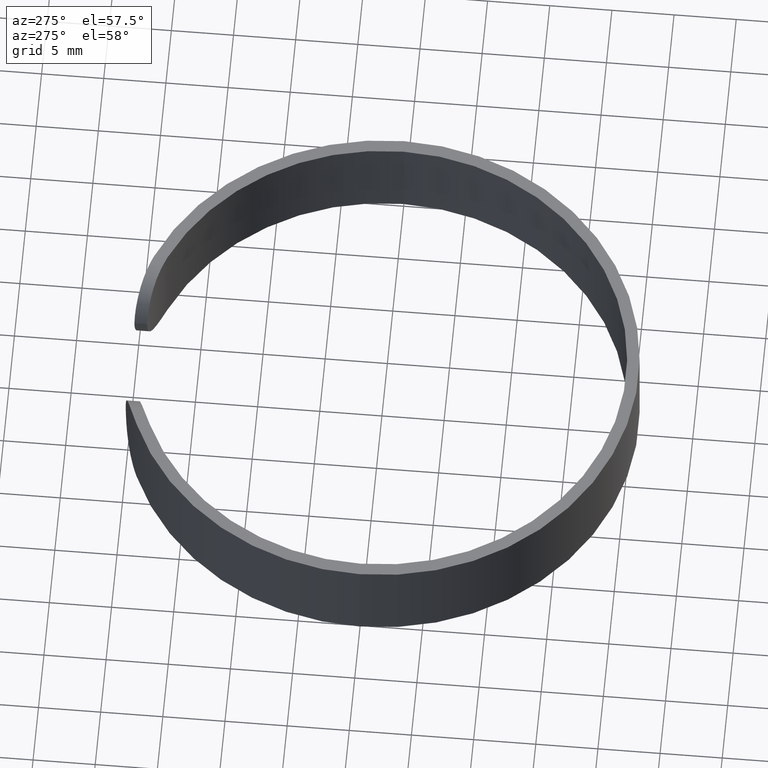
[diagram: clean part render]
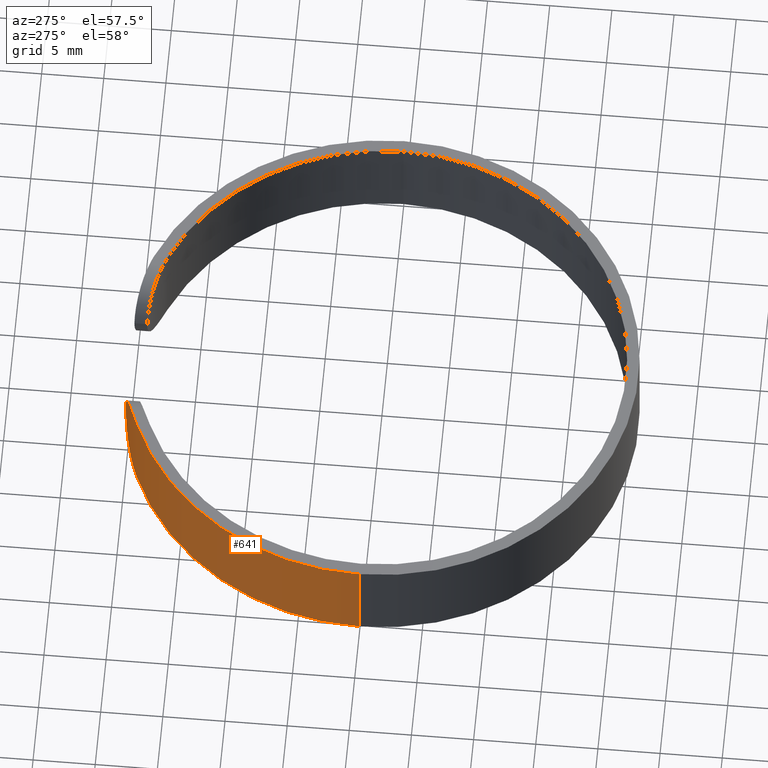
[diagram: same view with one face highlighted and labeled with its STEP entity id]
A machine part, auxiliary view. The second image highlights one B-rep face of the part: STEP entity #641.
In plain terms, the highlighted cylindrical surface (partial cylindrical patch) has radius 20.65 mm, axis along (-0, -0, -1).
Its self-contained STEP definition (entity closure, byte-faithful):
#4 = ORIENTED_EDGE ( 'NONE', *, *, #328, .F. ) ;
#30 = CARTESIAN_POINT ( 'NONE',  ( -5.440013080308325800, 19.92150801506721800, 0.9156393886543285900 ) ) ;
#34 = CARTESIAN_POINT ( 'NONE',  ( -4.591656496433357000, 20.13364190875028800, 5.909877613514676200 ) ) ;
#45 = CARTESIAN_POINT ( 'NONE',  ( -4.001250195373559700, 20.25864005490060300, 3.899999999999970200 ) ) ;
#65 = VECTOR ( 'NONE', #75, 1000.000000000000000 ) ;
#74 = CARTESIAN_POINT ( 'NONE',  ( -20.64999999999999900, 0.0000000000000000000, 7.799999999999999800 ) ) ;
#75 = DIRECTION ( 'NONE',  ( -0.0000000000000000000, -0.0000000000000000000, -1.000000000000000000 ) ) ;
#76 = CARTESIAN_POINT ( 'NONE',  ( 0.0000000000000000000, 0.0000000000000000000, 0.0000000000000000000 ) ) ;
#82 = CARTESIAN_POINT ( 'NONE',  ( -4.895375029125304400, 20.06195776127647100, 6.335683886555385100 ) ) ;
#83 = AXIS2_PLACEMENT_3D ( 'NONE', #350, #249, #347 ) ;
#84 = CARTESIAN_POINT ( 'NONE',  ( -4.041219654612105700, 20.25079472239115200, 4.431405115075309100 ) ) ;
#86 = CARTESIAN_POINT ( 'NONE',  ( -4.001250195373559700, 20.25864005490060300, 3.899999999999970200 ) ) ;
#118 = CARTESIAN_POINT ( 'NONE',  ( -8.000000000000005300, 19.03739740615822400, 7.799999999999999800 ) ) ;
#130 = VERTEX_POINT ( 'NONE', #45 ) ;
#134 = CARTESIAN_POINT ( 'NONE',  ( -4.007911188262438500, 20.25732445330909200, 4.166356440130245500 ) ) ;
#137 = CARTESIAN_POINT ( 'NONE',  ( -7.020837237768803100, 19.42159598297301000, 0.1137489386312720100 ) ) ;
#139 = CARTESIAN_POINT ( 'NONE',  ( -7.509196294477861000, 19.23804868109222000, 0.02246071677782991400 ) ) ;
#159 = B_SPLINE_CURVE_WITH_KNOTS ( 'NONE', 3,
 ( #290, #235, #586, #444, #185, #291, #340, #442, #532, #30, #631, #485, #182, #233, #137, #139, #486, #628 ),
 .UNSPECIFIED., .F., .F.,
 ( 4, 2, 2, 2, 2, 2, 2, 2, 4 ),
 ( 9.879302435176142600E-005, 0.0008880267322614252000, 0.001677260440171089100, 0.002466494148080752600, 0.003255727855990416500, 0.004044961563900080800, 0.004834195271809744300, 0.005623428979719408700, 0.006412662687629072100 ),
 .UNSPECIFIED. ) ;
#179 = CARTESIAN_POINT ( 'NONE',  ( -6.781859530246282300, 19.50617574754069500, 7.618430418075348600 ) ) ;
#182 = CARTESIAN_POINT ( 'NONE',  ( -6.307868449288581500, 19.66454576154484400, 0.3668141165345441000 ) ) ;
#184 = CARTESIAN_POINT ( 'NONE',  ( -4.159533489337325000, 20.22682437596989800, 4.949535220361351400 ) ) ;
#185 = CARTESIAN_POINT ( 'NONE',  ( -4.241968840561318300, 20.20990545619525100, 2.604905724731457500 ) ) ;
#222 = VERTEX_POINT ( 'NONE', #118 ) ;
#224 = CARTESIAN_POINT ( 'NONE',  ( -20.64999999999999900, 0.0000000000000000000, 0.0000000000000000000 ) ) ;
#228 = FACE_OUTER_BOUND ( 'NONE', #257, .T. ) ;
#230 = DIRECTION ( 'NONE',  ( 1.000000000000000000, 0.0000000000000000000, 0.0000000000000000000 ) ) ;
#232 = CARTESIAN_POINT ( 'NONE',  ( -6.309502619680715800, 19.66404555716294300, 7.434074251975118000 ) ) ;
#233 = CARTESIAN_POINT ( 'NONE',  ( -6.776633648679651700, 19.50796762282027400, 0.1833622625165446900 ) ) ;
#235 = CARTESIAN_POINT ( 'NONE',  ( -4.007895173158696700, 20.25732761642551300, 3.634283963799454800 ) ) ;
#239 = CARTESIAN_POINT ( 'NONE',  ( -5.651724668404256100, 19.86280840421904200, 7.048176613206530700 ) ) ;
#249 = DIRECTION ( 'NONE',  ( -0.0000000000000000000, -0.0000000000000000000, -1.000000000000000000 ) ) ;
#256 = ORIENTED_EDGE ( 'NONE', *, *, #567, .T. ) ;
#257 = EDGE_LOOP ( 'NONE', ( #370, #4, #256, #281, #477 ) ) ;
#268 = CARTESIAN_POINT ( 'NONE',  ( 0.0000000000000000000, 0.0000000000000000000, 7.799999999999999800 ) ) ;
#281 = ORIENTED_EDGE ( 'NONE', *, *, #582, .T. ) ;
#285 = CARTESIAN_POINT ( 'NONE',  ( -6.083280943453402800, 19.73491429910908900, 7.320118805073783500 ) ) ;
#290 = CARTESIAN_POINT ( 'NONE',  ( -4.001250195373559700, 20.25864005490060300, 3.899999999999970200 ) ) ;
#291 = CARTESIAN_POINT ( 'NONE',  ( -4.456839681716589400, 20.16360975232659000, 2.125139687565790900 ) ) ;
#292 = CARTESIAN_POINT ( 'NONE',  ( -4.458415750141116800, 20.16326193648578500, 5.677799280096178500 ) ) ;
#318 = B_SPLINE_CURVE_WITH_KNOTS ( 'NONE', 3,
 ( #387, #528, #385, #525, #179, #232, #285, #239, #580, #625, #82, #34, #292, #623, #184, #84, #134, #86 ),
 .UNSPECIFIED., .F., .F.,
 ( 4, 2, 2, 2, 2, 2, 2, 2, 4 ),
 ( 0.0000000000000000000, 0.0007892263829322288600, 0.001578452765864457700, 0.002367679148796686500, 0.003156905531728915500, 0.003946131914661144000, 0.004735358297593373000, 0.005524584680525601900, 0.006313811063457830900 ),
 .UNSPECIFIED. ) ;
#324 = DIRECTION ( 'NONE',  ( 1.000000000000000000, 0.0000000000000000000, 0.0000000000000000000 ) ) ;
#328 = EDGE_CURVE ( 'NONE', #222, #549, #460, .T. ) ;
#340 = CARTESIAN_POINT ( 'NONE',  ( -4.586668906140812600, 20.13478070144105200, 1.898051942353316400 ) ) ;
#347 = DIRECTION ( 'NONE',  ( -1.000000000000000000, 0.0000000000000000000, 0.0000000000000000000 ) ) ;
#350 = CARTESIAN_POINT ( 'NONE',  ( 0.0000000000000000000, 0.0000000000000000000, 7.799999999999999800 ) ) ;
#354 = VERTEX_POINT ( 'NONE', #224 ) ;
#370 = ORIENTED_EDGE ( 'NONE', *, *, #397, .F. ) ;
#385 = CARTESIAN_POINT ( 'NONE',  ( -7.509879393181149600, 19.23775944998629200, 7.777522151921434800 ) ) ;
#387 = CARTESIAN_POINT ( 'NONE',  ( -8.000000000000005300, 19.03739740615822400, 7.799999999999999800 ) ) ;
#391 = CARTESIAN_POINT ( 'NONE',  ( -20.64999999999999900, 0.0000000000000000000, 7.799999999999999800 ) ) ;
#397 = EDGE_CURVE ( 'NONE', #549, #354, #529, .T. ) ;
#427 = AXIS2_PLACEMENT_3D ( 'NONE', #76, #434, #230 ) ;
#434 = DIRECTION ( 'NONE',  ( 0.0000000000000000000, 0.0000000000000000000, 1.000000000000000000 ) ) ;
#438 = CYLINDRICAL_SURFACE ( 'NONE', #83, 20.64999999999999900 ) ;
#442 = CARTESIAN_POINT ( 'NONE',  ( -4.890900802454512000, 20.06305098658307200, 1.469680460263442800 ) ) ;
#444 = CARTESIAN_POINT ( 'NONE',  ( -4.156984652658899800, 20.22734534515602800, 2.859587637669852400 ) ) ;
#446 = CIRCLE ( 'NONE', #427, 20.64999999999999900 ) ;
#460 = CIRCLE ( 'NONE', #607, 20.64999999999999900 ) ;
#464 = EDGE_CURVE ( 'NONE', #523, #354, #446, .T. ) ;
#474 = DIRECTION ( 'NONE',  ( 0.0000000000000000000, 0.0000000000000000000, 1.000000000000000000 ) ) ;
#477 = ORIENTED_EDGE ( 'NONE', *, *, #464, .T. ) ;
#485 = CARTESIAN_POINT ( 'NONE',  ( -6.081184435436592000, 19.73558738173175400, 0.4808127906395287000 ) ) ;
#486 = CARTESIAN_POINT ( 'NONE',  ( -7.754257849479677700, 19.14066452624926400, 2.397103240729670000E-016 ) ) ;
#523 = VERTEX_POINT ( 'NONE', #622 ) ;
#525 = CARTESIAN_POINT ( 'NONE',  ( -7.024669621259691100, 19.42018779177521300, 7.687110923367182400 ) ) ;
#528 = CARTESIAN_POINT ( 'NONE',  ( -7.754184259859724400, 19.14069545048470600, 7.799999999999998900 ) ) ;
#529 = LINE ( 'NONE', #74, #65 ) ;
#532 = CARTESIAN_POINT ( 'NONE',  ( -5.064334795514384700, 20.02030811419383100, 1.270772413853043200 ) ) ;
#549 = VERTEX_POINT ( 'NONE', #391 ) ;
#567 = EDGE_CURVE ( 'NONE', #222, #130, #318, .T. ) ;
#580 = CARTESIAN_POINT ( 'NONE',  ( -5.444181554298773500, 19.92038155787398400, 6.887934366087544700 ) ) ;
#582 = EDGE_CURVE ( 'NONE', #130, #523, #159, .T. ) ;
#586 = CARTESIAN_POINT ( 'NONE',  ( -4.040668045859482600, 20.25090177887930300, 3.373104639531850200 ) ) ;
#607 = AXIS2_PLACEMENT_3D ( 'NONE', #268, #474, #324 ) ;
#622 = CARTESIAN_POINT ( 'NONE',  ( -8.000000000000005300, 19.03739740615822400, 0.0000000000000000000 ) ) ;
#623 = CARTESIAN_POINT ( 'NONE',  ( -4.243328438209130300, 20.20962064675951500, 5.198702224209986500 ) ) ;
#625 = CARTESIAN_POINT ( 'NONE',  ( -5.066084536706264400, 20.01987766382198700, 6.531242689856951800 ) ) ;
#628 = CARTESIAN_POINT ( 'NONE',  ( -8.000000000000005300, 19.03739740615822400, 0.0000000000000000000 ) ) ;
#631 = CARTESIAN_POINT ( 'NONE',  ( -5.645090313509535400, 19.86472171443855600, 0.7564013574718402300 ) ) ;
#641 = ADVANCED_FACE ( 'NONE', ( #228 ), #438, .T. ) ;